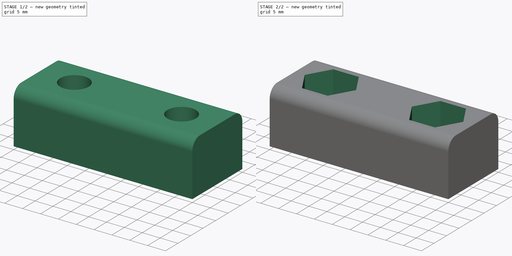
[diagram: build sequence overview — one tinted view per stage of 2, left to right]
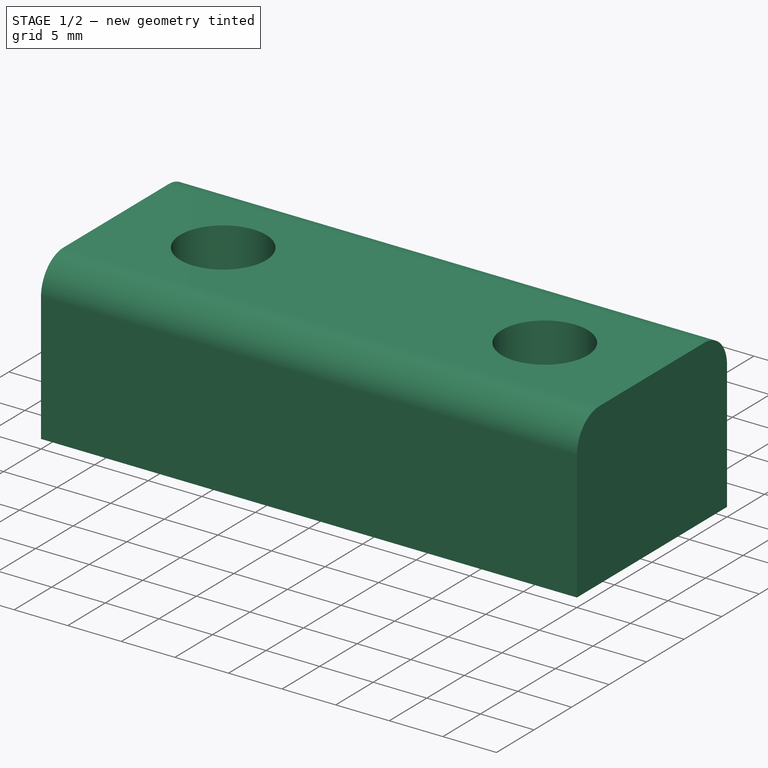
[diagram: stage 1 of 2 — iso view after this stage's code; geometry added in this stage tinted green]
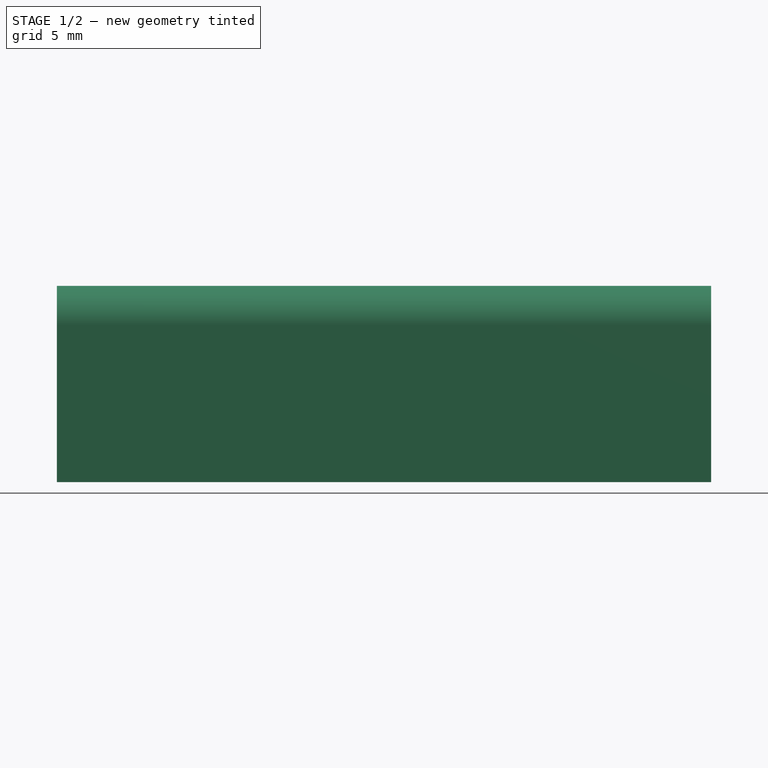
[diagram: stage 1 of 2 — front view after this stage's code; geometry added in this stage tinted green]
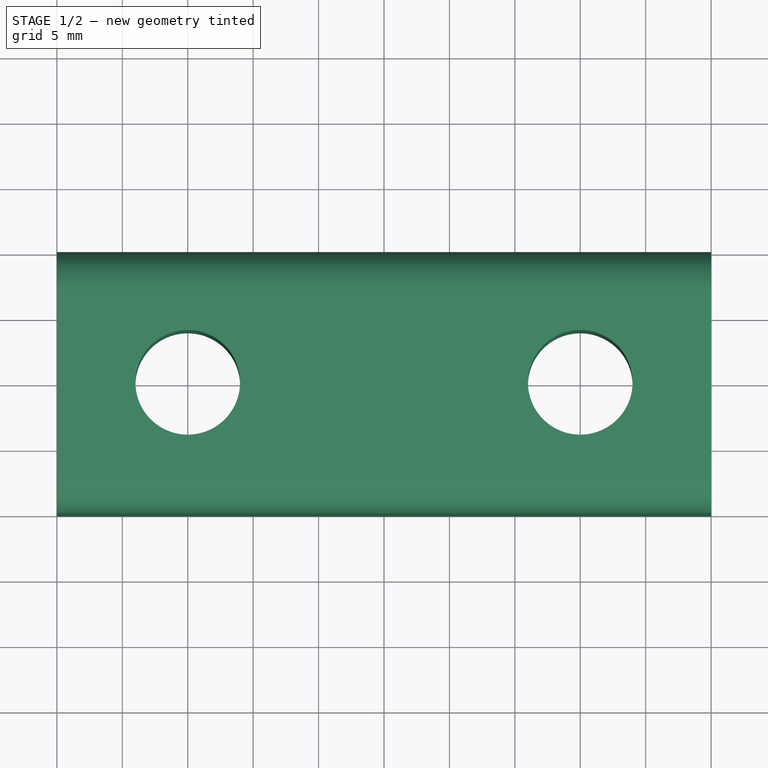
[diagram: stage 1 of 2 — top view after this stage's code; geometry added in this stage tinted green]
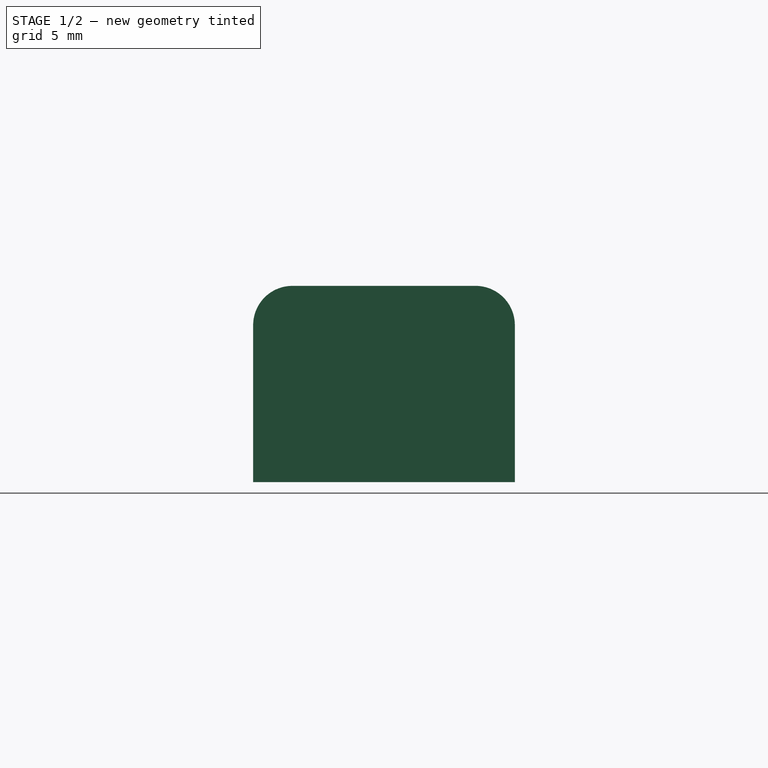
[diagram: stage 1 of 2 — right view after this stage's code; geometry added in this stage tinted green]
FCSTD DOCUMENT  (FreeCAD 0.16R6707 (Git))
Label: TopLeft
License: All rights reserved
LicenseURL: http://en.wikipedia.org/wiki/All_rights_reserved
objects: Sketcher::SketchObject×3, PartDesign::Pocket×2, PartDesign::Pad×1
note: 9 computed .brp shape members not serialized (recipe doc carries the construction recipe); baked Part::Feature solids carry a one-line shape summary decoded from their .brp

FEATURE [Sketcher::SketchObject] Sketch
  Placement = pos=(0,0,0) rot=(0.57735,0.57735,0.57735;2.0944rad)
  sketch-geometry (6):
    g0: LineSegment StartX=0 StartY=0 StartZ=0 EndX=20 EndY=0 EndZ=0
    g1: LineSegment StartX=20 StartY=0 StartZ=0 EndX=20 EndY=12 EndZ=0
    g2: LineSegment StartX=0 StartY=0 StartZ=0 EndX=0 EndY=12 EndZ=0
    g3: LineSegment StartX=3 StartY=15 StartZ=0 EndX=17 EndY=15 EndZ=0
    g4: ArcOfCircle CenterX=3 CenterY=12 CenterZ=0 NormalX=0 NormalY=0 NormalZ=1 Radius=3 StartAngle=1.5708 EndAngle=3.14159
    g5: ArcOfCircle CenterX=17 CenterY=12 CenterZ=0 NormalX=0 NormalY=0 NormalZ=1 Radius=3 StartAngle=0 EndAngle=1.5708
  constraints (19):
    c: Coincident(g0,g-1)
    c: Horizontal(g0)
    c: Coincident(g1,g0)
    c: Vertical(g1)
    c: Coincident(g2,g-1)
    c: Vertical(g2)
    c: Horizontal(g3)
    c: DistanceX(g0,g0) = 20
    c: DistanceY(g2,g2) = 12
    c: Equal(g1,g2)
    c: DistanceY(g-1,g3) = 15
    c: Coincident(g4,g2)
    c: Coincident(g4,g3)
    c: Coincident(g5,g3)
    c: Coincident(g5,g1)
    c: DistanceX(g3,g3) = 14
    c: DistanceX(g-1,g3) = 3
    c: DistanceY(g-1,g4) = 12
    c: DistanceY(g-1,g5) = 12
FEATURE [PartDesign::Pad] Pad
  Length = 50
  Length2 = 100
  Placement = pos=(0,0,0) rot=(0.57735,0.57735,0.57735;2.0944rad)
  Sketch = -> Sketch
  Type = 0
FEATURE [Sketcher::SketchObject] Sketch001
  Placement = pos=(0,0,15) rot=(0,0,-1;1.5708rad)
  Support = -> Pad [Face6]
  sketch-geometry (2):
    g0: Circle CenterX=-10 CenterY=40 CenterZ=0 NormalX=0 NormalY=0 NormalZ=1 Radius=4
    g1: Circle CenterX=-10 CenterY=10 CenterZ=0 NormalX=0 NormalY=0 NormalZ=1 Radius=4
  constraints (6):
    c: DistanceY(g-1,g1) = 10
    c: Radius(g0) = 4
    c: Radius(g1) = 4
    c: DistanceY(g1,g0) = 30
    c: DistanceX(g1,g-1) = 10
    c: DistanceX(g0,g-1) = 10
FEATURE [PartDesign::Pocket] Pocket
  Length = 5
  Placement = pos=(0,0,0) rot=(0.57735,0.57735,0.57735;2.0944rad)
  Sketch = -> Sketch001
  Type = 1
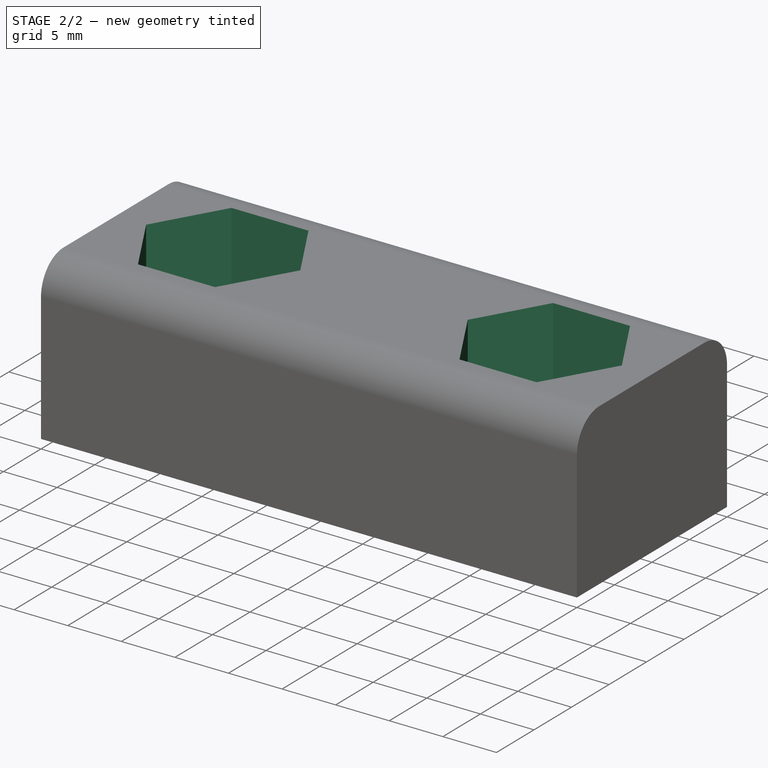
[diagram: stage 2 of 2 — iso view after this stage's code; geometry added in this stage tinted green]
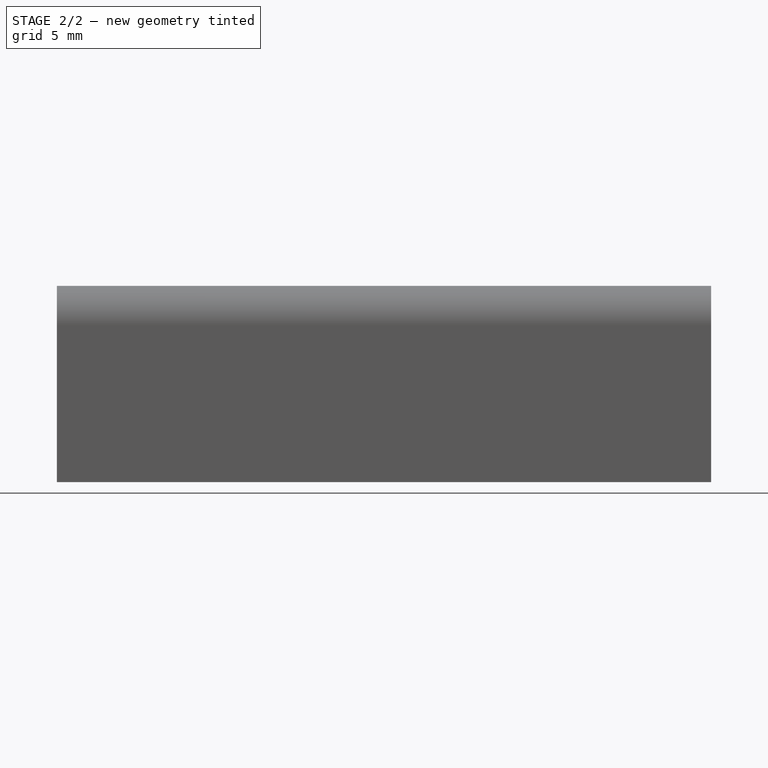
[diagram: stage 2 of 2 — front view after this stage's code; geometry added in this stage tinted green]
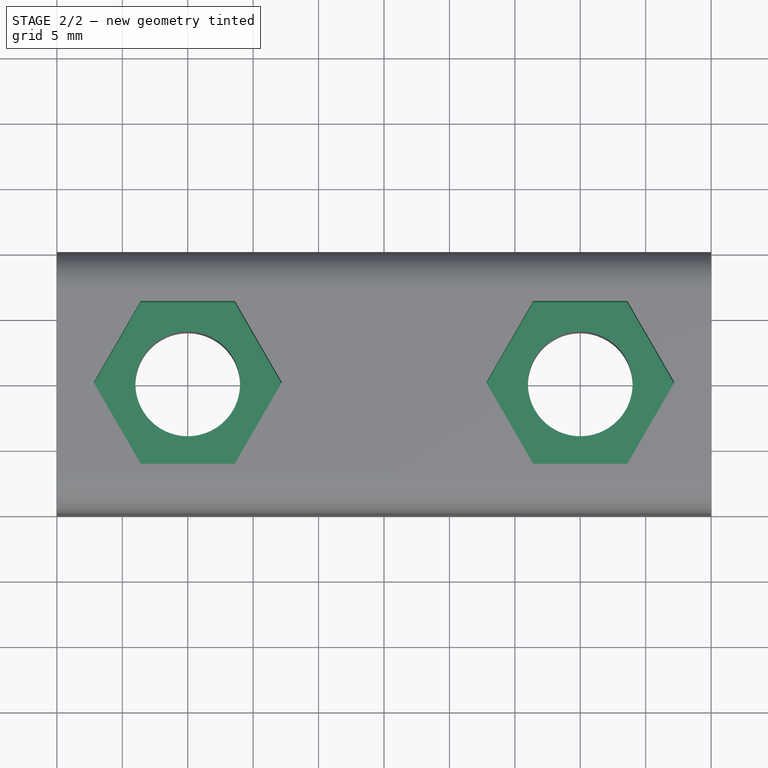
[diagram: stage 2 of 2 — top view after this stage's code; geometry added in this stage tinted green]
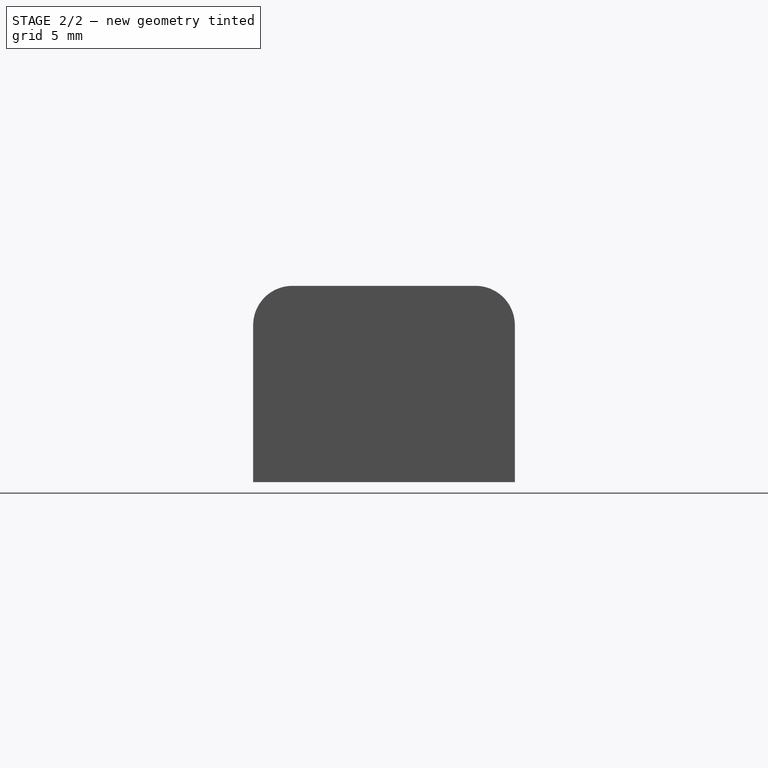
[diagram: stage 2 of 2 — right view after this stage's code; geometry added in this stage tinted green]
FEATURE [Sketcher::SketchObject] Sketch002
  Placement = pos=(0,0,15) rot=(0,0,-1;1.5708rad)
  Support = -> Pocket [Face2]
  sketch-geometry (14):
    g0: LineSegment StartX=-16.2267 StartY=36.405 StartZ=0 EndX=-10 EndY=32.81 EndZ=0
    g1: LineSegment StartX=-10 StartY=32.81 StartZ=0 EndX=-3.77328 EndY=36.405 EndZ=0
    g2: LineSegment StartX=-3.77328 StartY=36.405 StartZ=0 EndX=-3.77328 EndY=43.595 EndZ=0
    g3: LineSegment StartX=-3.77328 StartY=43.595 StartZ=0 EndX=-10 EndY=47.19 EndZ=0
    g4: LineSegment StartX=-10 StartY=47.19 StartZ=0 EndX=-16.2267 EndY=43.595 EndZ=0
    g5: LineSegment StartX=-16.2267 StartY=43.595 StartZ=0 EndX=-16.2267 EndY=36.405 EndZ=0
    g6: Circle [constr] CenterX=-10 CenterY=40 CenterZ=0 NormalX=0 NormalY=0 NormalZ=1 Radius=7.19
    g7: LineSegment StartX=-16.2267 StartY=6.405 StartZ=0 EndX=-10 EndY=2.81 EndZ=0
    g8: LineSegment StartX=-10 StartY=2.81 StartZ=0 EndX=-3.77328 EndY=6.405 EndZ=0
    g9: LineSegment StartX=-3.77328 StartY=6.405 StartZ=0 EndX=-3.77328 EndY=13.595 EndZ=0
    g10: LineSegment StartX=-3.77328 StartY=13.595 StartZ=0 EndX=-10 EndY=17.19 EndZ=0
    g11: LineSegment StartX=-10 StartY=17.19 StartZ=0 EndX=-16.2267 EndY=13.595 EndZ=0
    g12: LineSegment StartX=-16.2267 StartY=13.595 StartZ=0 EndX=-16.2267 EndY=6.405 EndZ=0
    g13: Circle [constr] CenterX=-10 CenterY=10 CenterZ=0 NormalX=0 NormalY=0 NormalZ=1 Radius=7.19
  constraints (34):
    c: Coincident(g0,g1)
    c: Coincident(g1,g2)
    c: Coincident(g2,g3)
    c: Coincident(g3,g4)
    c: Coincident(g4,g5)
    c: Coincident(g5,g0)
    c: Equal(g0, g1-g5) x5
    c: PointOnObject(g0,g6)
    c: PointOnObject(g1,g6)
    c: PointOnObject(g2,g6)
    c: PointOnObject(g3,g6)
    c: PointOnObject(g4,g6)
    c: PointOnObject(g5,g6)
    c: Coincident(g7,g8)
    c: Coincident(g8,g9)
    c: Coincident(g9,g10)
    c: Coincident(g10,g11)
    c: Coincident(g11,g12)
    c: Coincident(g12,g7)
    c: Equal(g7, g8-g12) x5
    c: PointOnObject(g7,g13)
    c: PointOnObject(g8,g13)
    c: PointOnObject(g9,g13)
    c: PointOnObject(g10,g13)
    c: PointOnObject(g11,g13)
    c: PointOnObject(g12,g13)
    c: DistanceY(g-1,g13) = 10
    c: DistanceY(g13,g6) = 30
    c: Vertical(g2)
    c: Vertical(g9)
    c: DistanceX(g13,g-1) = 10
    c: DistanceX(g6,g-1) = 10
    c: Radius(g6) = 7.19
    c: Equal(g6,g13)
FEATURE [PartDesign::Pocket] Pocket001
  Length = 7
  Placement = pos=(0,0,0) rot=(0.57735,0.57735,0.57735;2.0944rad)
  Sketch = -> Sketch002
  Type = 0
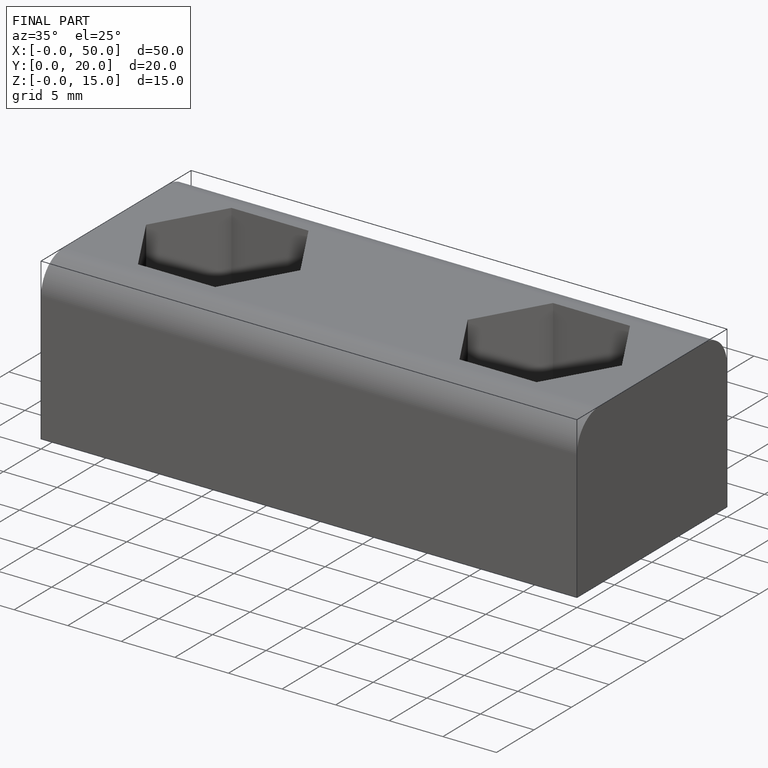
[diagram: finished part — iso view with bounding-box wireframe]
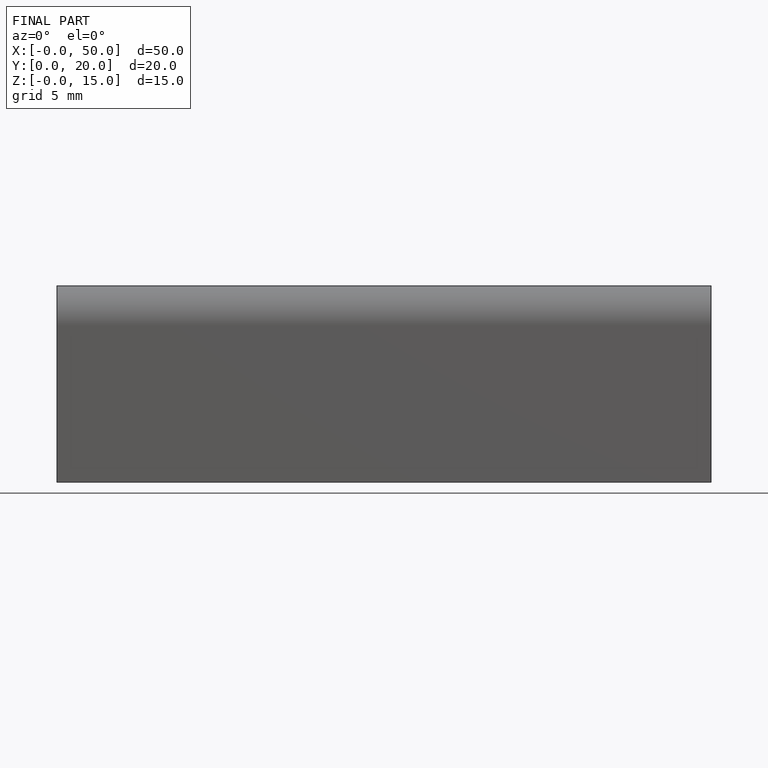
[diagram: finished part — front view with bounding-box wireframe]
